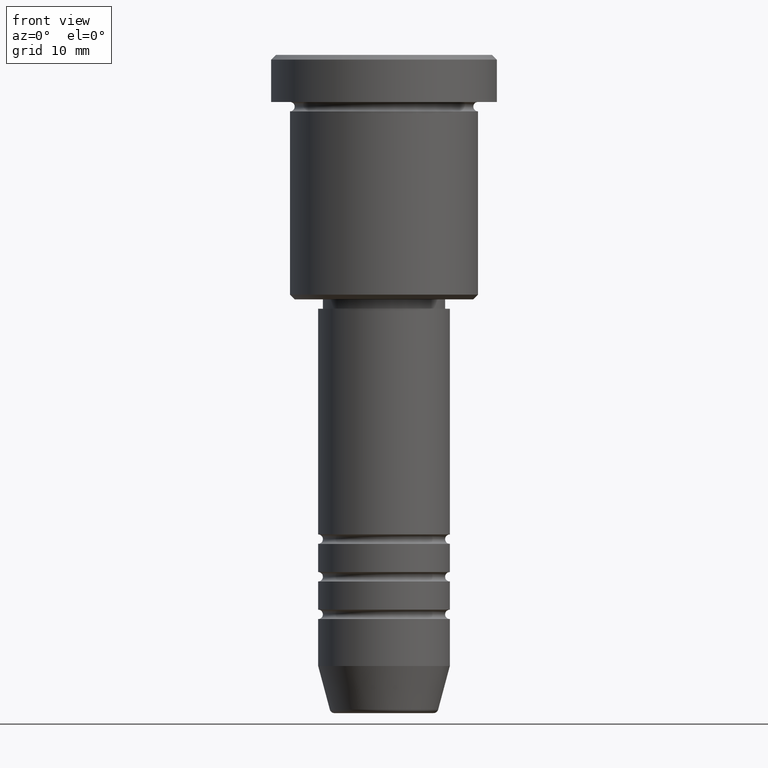
[diagram: clean part render]
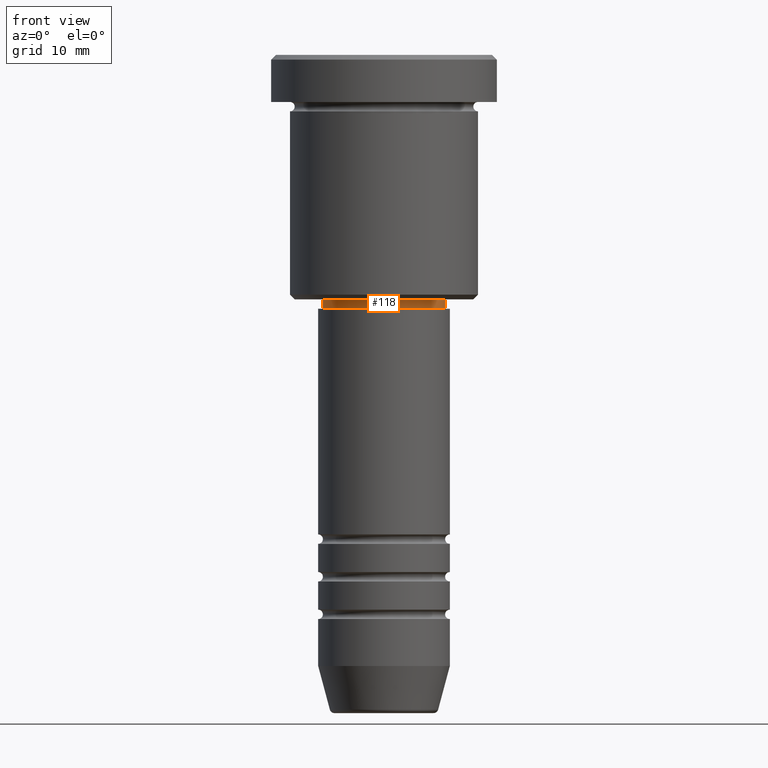
[diagram: same view with one face highlighted and labeled with its STEP entity id]
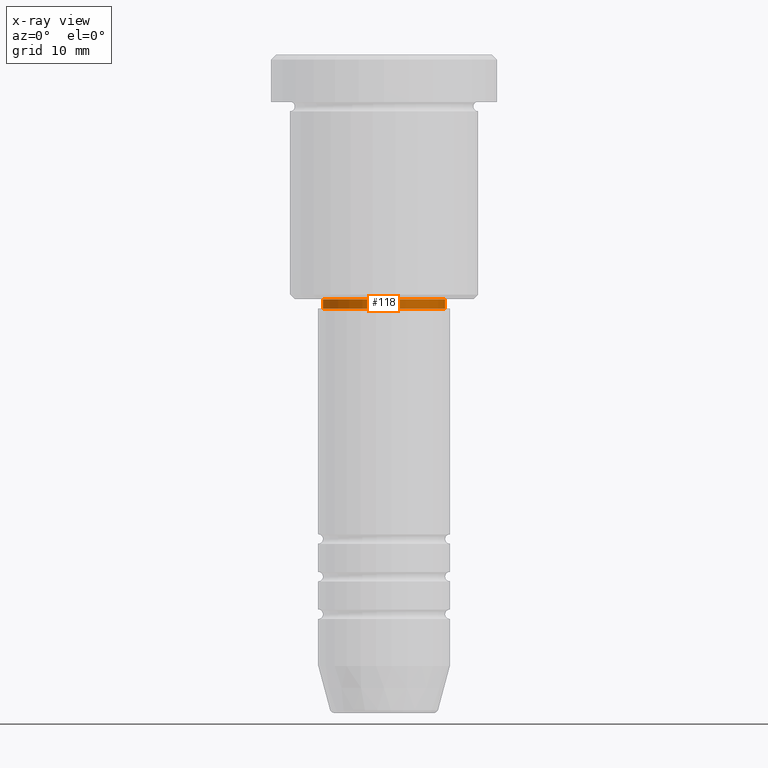
[diagram: x-ray of the same camera — body ghosted, the highlighted face saturated]
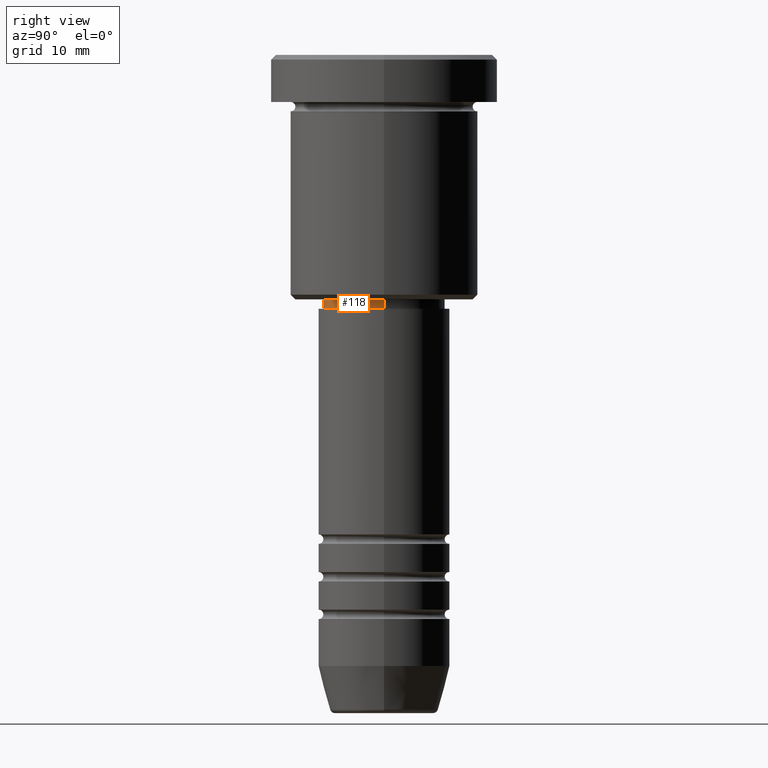
[diagram: same view with one face highlighted and labeled with its STEP entity id]
A machine part, front view. The second image highlights one B-rep face of the part: STEP entity #118.
The next image is the same camera in x-ray: the body ghosted, the highlighted face saturated — about 0% of this face is hidden behind the body in this view.
A second angle (right view) of the same face is appended — the face is thin or edge-on in the first view.
In plain terms, the highlighted cylindrical surface (partial cylindrical patch) has radius 6.5 mm, axis along (-0, -0, 1).
Its self-contained STEP definition (entity closure, byte-faithful):
#10 = DIRECTION ( 'NONE',  ( -0.000000000000000000, -0.000000000000000000, 1.000000000000000000 ) ) ;
#84 = CARTESIAN_POINT ( 'NONE',  ( -6.500000000000000888, 7.960204194457796463E-16, -27.00000000000000355 ) ) ;
#89 = VECTOR ( 'NONE', #771, 1000.000000000000000 ) ;
#118 = ADVANCED_FACE ( 'NONE', ( #230 ), #1057, .T. ) ;
#187 = CARTESIAN_POINT ( 'NONE',  ( -6.500000000000000888, 7.960204194457796463E-16, 0.000000000000000000 ) ) ;
#188 = AXIS2_PLACEMENT_3D ( 'NONE', #602, #320, #413 ) ;
#200 = EDGE_CURVE ( 'NONE', #884, #951, #397, .T. ) ;
#204 = CARTESIAN_POINT ( 'NONE',  ( -6.500000000000000000, 7.960204194457795477E-16, -26.00000000000000000 ) ) ;
#223 = AXIS2_PLACEMENT_3D ( 'NONE', #811, #634, #797 ) ;
#230 = FACE_OUTER_BOUND ( 'NONE', #266, .T. ) ;
#238 = CARTESIAN_POINT ( 'NONE',  ( 6.500000000000000000, 0.000000000000000000, -26.00000000000000000 ) ) ;
#266 = EDGE_LOOP ( 'NONE', ( #629, #312, #484, #724 ) ) ;
#312 = ORIENTED_EDGE ( 'NONE', *, *, #838, .T. ) ;
#320 = DIRECTION ( 'NONE',  ( -0.000000000000000000, -0.000000000000000000, 1.000000000000000000 ) ) ;
#374 = AXIS2_PLACEMENT_3D ( 'NONE', #1101, #729, #1019 ) ;
#397 = LINE ( 'NONE', #1045, #89 ) ;
#413 = DIRECTION ( 'NONE',  ( 1.000000000000000000, 0.000000000000000000, 0.000000000000000000 ) ) ;
#428 = VERTEX_POINT ( 'NONE', #204 ) ;
#452 = VECTOR ( 'NONE', #10, 1000.000000000000000 ) ;
#484 = ORIENTED_EDGE ( 'NONE', *, *, #200, .T. ) ;
#540 = VERTEX_POINT ( 'NONE', #84 ) ;
#602 = CARTESIAN_POINT ( 'NONE',  ( 0.000000000000000000, 0.000000000000000000, 0.000000000000000000 ) ) ;
#629 = ORIENTED_EDGE ( 'NONE', *, *, #803, .F. ) ;
#634 = DIRECTION ( 'NONE',  ( -0.000000000000000000, -0.000000000000000000, 1.000000000000000000 ) ) ;
#642 = LINE ( 'NONE', #187, #452 ) ;
#693 = CARTESIAN_POINT ( 'NONE',  ( 6.500000000000000888, 0.000000000000000000, -27.00000000000000355 ) ) ;
#699 = CIRCLE ( 'NONE', #374, 6.500000000000000000 ) ;
#724 = ORIENTED_EDGE ( 'NONE', *, *, #789, .F. ) ;
#729 = DIRECTION ( 'NONE',  ( -0.000000000000000000, -0.000000000000000000, 1.000000000000000000 ) ) ;
#771 = DIRECTION ( 'NONE',  ( -0.000000000000000000, -0.000000000000000000, 1.000000000000000000 ) ) ;
#789 = EDGE_CURVE ( 'NONE', #428, #951, #699, .T. ) ;
#797 = DIRECTION ( 'NONE',  ( 1.000000000000000000, 0.000000000000000000, 0.000000000000000000 ) ) ;
#803 = EDGE_CURVE ( 'NONE', #540, #428, #642, .T. ) ;
#811 = CARTESIAN_POINT ( 'NONE',  ( 0.000000000000000000, 0.000000000000000000, -27.00000000000000355 ) ) ;
#838 = EDGE_CURVE ( 'NONE', #540, #884, #1136, .T. ) ;
#884 = VERTEX_POINT ( 'NONE', #693 ) ;
#951 = VERTEX_POINT ( 'NONE', #238 ) ;
#1019 = DIRECTION ( 'NONE',  ( 1.000000000000000000, 0.000000000000000000, 0.000000000000000000 ) ) ;
#1045 = CARTESIAN_POINT ( 'NONE',  ( 6.500000000000000888, 0.000000000000000000, 0.000000000000000000 ) ) ;
#1057 = CYLINDRICAL_SURFACE ( 'NONE', #188, 6.500000000000000888 ) ;
#1101 = CARTESIAN_POINT ( 'NONE',  ( 0.000000000000000000, 0.000000000000000000, -26.00000000000000000 ) ) ;
#1136 = CIRCLE ( 'NONE', #223, 6.500000000000000888 ) ;